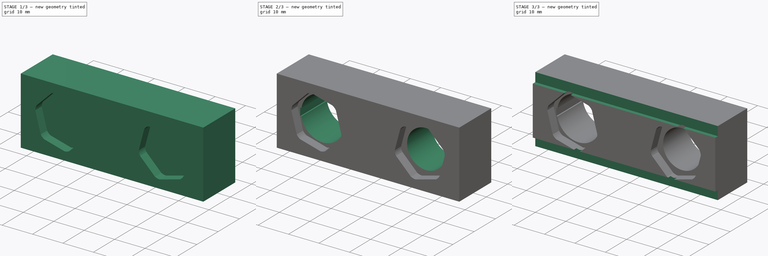
[diagram: build sequence overview — one tinted view per stage of 3, left to right]
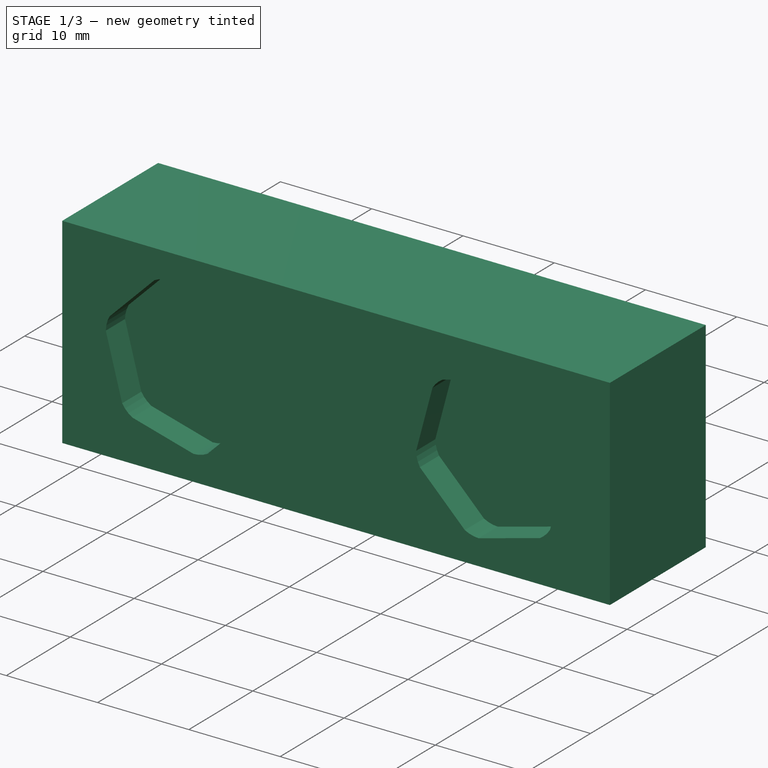
[diagram: stage 1 of 3 — iso view after this stage's code; geometry added in this stage tinted green]
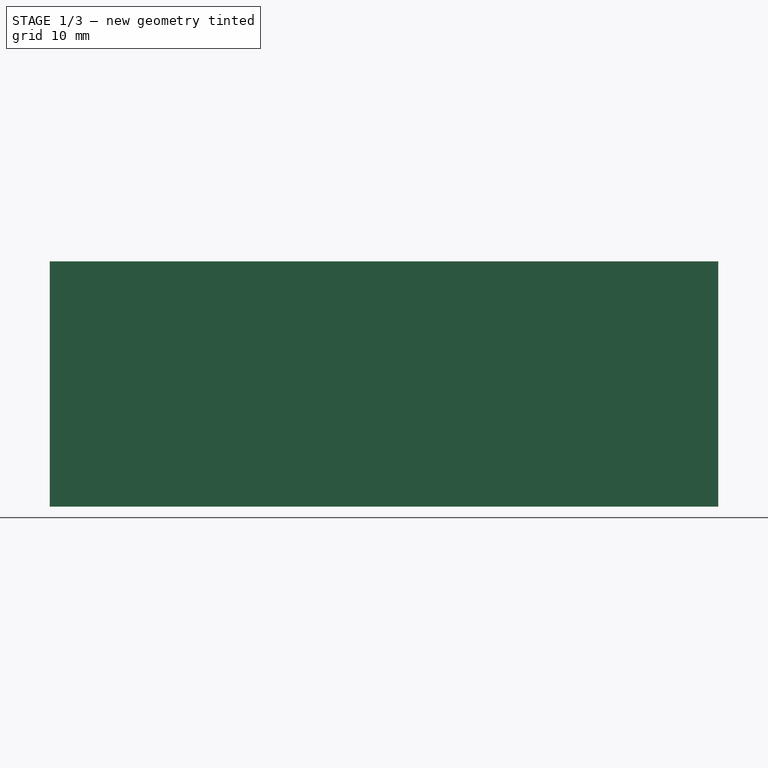
[diagram: stage 1 of 3 — front view after this stage's code; geometry added in this stage tinted green]
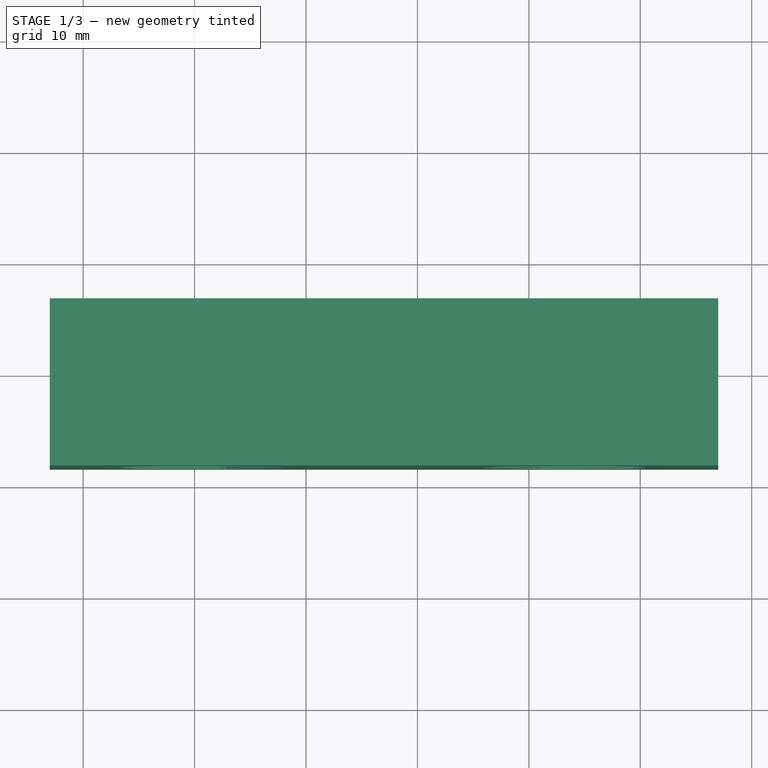
[diagram: stage 1 of 3 — top view after this stage's code; geometry added in this stage tinted green]
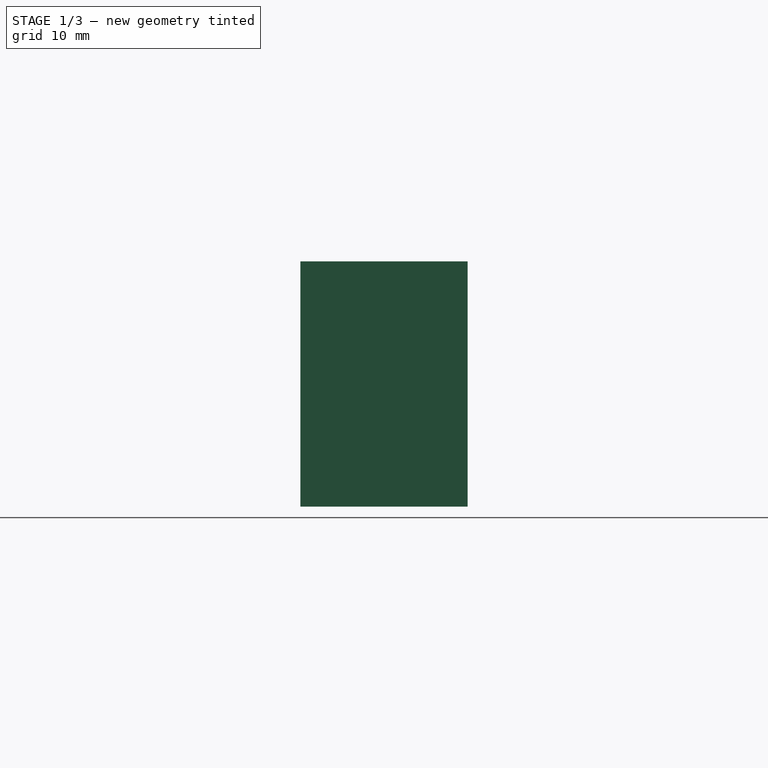
[diagram: stage 1 of 3 — right view after this stage's code; geometry added in this stage tinted green]
FCSTD DOCUMENT  (FreeCAD 0.18R4 (GitTag))
Label: HilfsmittelVerschraubung
License: All rights reserved
LicenseURL: http://en.wikipedia.org/wiki/All_rights_reserved
objects: Sketcher::SketchObject×5, Part::Feature×3, PartDesign::Pocket×3, PartDesign::Pad×2, App::Part×1, PartDesign::Body×1
note: 19 computed .brp shape members not serialized (recipe doc carries the construction recipe); baked Part::Feature solids carry a one-line shape summary decoded from their .brp

FEATURE [Sketcher::SketchObject] Sketch  label="SkizzeBasis"
  MapMode = 5
  Support = -> [XY_Plane]
  sketch-geometry (4):
    g0: LineSegment StartX=-13 StartY=16.6 StartZ=0 EndX=47 EndY=16.6 EndZ=0
    g1: LineSegment StartX=47 StartY=16.6 StartZ=0 EndX=47 EndY=1.6 EndZ=0
    g2: LineSegment StartX=47 StartY=1.6 StartZ=0 EndX=-13 EndY=1.6 EndZ=0
    g3: LineSegment StartX=-13 StartY=1.6 StartZ=0 EndX=-13 EndY=16.6 EndZ=0
  constraints (12):
    c: Coincident(g0,g1)
    c: Coincident(g1,g2)
    c: Coincident(g2,g3)
    c: Coincident(g3,g0)
    c: Horizontal(g0)
    c: Horizontal(g2)
    c: Vertical(g1)
    c: Vertical(g3)
    c: Distance(g3) = 15
    c: Distance(g2) = 60
    c: DistanceX(g2,g-1) = 13
    c: DistanceY(g-1,g2) = 1.6
FEATURE [PartDesign::Pad] Pad  label="Basis"
  Length = 11
  Length2 = 11
  Profile = -> Sketch
  Refine = true
  Type = 4
FEATURE [Part::Feature] Part__Feature001  label="SOLID"
  shape: bbox 16.5 x 19.3 x 15.08 mm, 298 faces (baked)
FEATURE [Part::Feature] Part__Feature002  label="SOLID001"
  shape: bbox 14.94 x 1 x 14.94 mm, 4 faces (baked)
FEATURE [App::Part] BS_0000000M300  label="BS-0000000M300"
  Group = -> [Part__Feature001,Part__Feature002]
  Origin = -> Origin001
  Placement = pos=(34,-5.5,0) rot=(0,1,0;0.785398rad)
FEATURE [Part::Feature] Part__Feature  label="1432460"
  Placement = pos=(0,-3,0) rot=(0,-1,0;0.785398rad)
  shape: bbox 17.11 x 15 x 17.11 mm, 236 faces (baked)
FEATURE [Sketcher::SketchObject] Sketch001  label="SkizzeSechskant"
  MapMode = 5
  Placement = pos=(0,1.6,0) rot=(1,0,0;1.5708rad)
  Support = -> [Pad]
  sketch-geometry (110):
    g0: LineSegment [constr] StartX=-2.89712 StartY=7.82773 StartZ=0 EndX=-2.41587 EndY=8.0451 EndZ=0
    g1: LineSegment StartX=-2.41587 StartY=8.0451 StartZ=0 EndX=-1.90561 EndY=8.18099 EndZ=0
    g2: LineSegment StartX=-1.90561 StartY=8.18099 StartZ=0 EndX=-1.38 EndY=8.23178 EndZ=0
    g3: LineSegment StartX=-1.38 StartY=8.23178 StartZ=0 EndX=5.33046 EndY=6.42284 EndZ=0
    g4: LineSegment StartX=5.33046 StartY=6.42284 StartZ=0 EndX=5.75932 EndY=6.11476 EndZ=0
    g5: LineSegment StartX=5.75932 StartY=6.11476 StartZ=0 EndX=6.13215 EndY=5.7408 EndZ=0
    g6: LineSegment StartX=6.13215 StartY=5.7408 StartZ=0 EndX=6.43893 EndY=5.31101 EndZ=0
    g7: LineSegment StartX=6.43893 StartY=5.31101 StartZ=0 EndX=8.22757 EndY=-1.40489 EndZ=0
    g8: LineSegment StartX=8.22757 StartY=-1.40489 StartZ=0 EndX=8.17519 EndY=-1.93034 EndZ=0
    g9: LineSegment StartX=8.17519 StartY=-1.93034 StartZ=0 EndX=8.03775 EndY=-2.44019 EndZ=0
    g10: LineSegment StartX=8.03775 StartY=-2.44019 StartZ=0 EndX=7.81893 EndY=-2.92078 EndZ=0
    g11: LineSegment StartX=7.81893 StartY=-2.92078 StartZ=0 EndX=2.89712 EndY=-7.82773 EndZ=0
    g12: LineSegment StartX=1.38 StartY=-8.23178 StartZ=0 EndX=-5.33046 EndY=-6.42284 EndZ=0
    g13: LineSegment StartX=-5.33046 StartY=-6.42284 StartZ=0 EndX=-5.75932 EndY=-6.11476 EndZ=0
    g14: LineSegment StartX=-5.75932 StartY=-6.11476 StartZ=0 EndX=-6.13215 EndY=-5.7408 EndZ=0
    g15: LineSegment StartX=-6.13215 StartY=-5.7408 StartZ=0 EndX=-6.43893 EndY=-5.31101 EndZ=0
    g16: LineSegment StartX=-6.43893 StartY=-5.31101 StartZ=0 EndX=-8.22757 EndY=1.40489 EndZ=0
    g17: LineSegment StartX=-8.22757 StartY=1.40489 StartZ=0 EndX=-8.17519 EndY=1.93034 EndZ=0
    g18: LineSegment StartX=-8.17519 StartY=1.93034 StartZ=0 EndX=-8.03775 EndY=2.44019 EndZ=0
    g19: LineSegment StartX=-8.03775 StartY=2.44019 StartZ=0 EndX=-7.81893 EndY=2.92078 EndZ=0
    g20: LineSegment StartX=-7.81893 StartY=2.92078 StartZ=0 EndX=-2.89712 EndY=7.82773 EndZ=0
    g21: LineSegment [constr] StartX=0 StartY=0 StartZ=0 EndX=-1.38 EndY=8.23178 EndZ=0
    g22: LineSegment [constr] StartX=-2.89712 StartY=7.82773 StartZ=0 EndX=0 EndY=0 EndZ=0
    g23: LineSegment [constr] StartX=0 StartY=0 StartZ=0 EndX=-7.81893 EndY=2.92078 EndZ=0
    g24: LineSegment [constr] StartX=0 StartY=0 StartZ=0 EndX=-8.22757 EndY=1.40489 EndZ=0
    g25: LineSegment [constr] StartX=0 StartY=0 StartZ=0 EndX=-6.43893 EndY=-5.31101 EndZ=0
    g26: LineSegment [constr] StartX=0 StartY=0 StartZ=0 EndX=-5.33046 EndY=-6.42284 EndZ=0
    g27: LineSegment [constr] StartX=0 StartY=0 StartZ=0 EndX=1.38 EndY=-8.23178 EndZ=0
    g28: LineSegment [constr] StartX=0 StartY=0 StartZ=0 EndX=2.89712 EndY=-7.82773 EndZ=0
    g29: LineSegment [constr] StartX=0 StartY=0 StartZ=0 EndX=7.81893 EndY=-2.92078 EndZ=0
    g30: LineSegment [constr] StartX=0 StartY=0 StartZ=0 EndX=8.22757 EndY=-1.40489 EndZ=0
    g31: LineSegment [constr] StartX=0 StartY=0 StartZ=0 EndX=6.43893 EndY=5.31101 EndZ=0
    g32: LineSegment [constr] StartX=0 StartY=0 StartZ=0 EndX=5.33046 EndY=6.42284 EndZ=0
    g33: LineSegment [constr] StartX=0 StartY=0 StartZ=0 EndX=-2.41587 EndY=8.0451 EndZ=0
    g34: LineSegment [constr] StartX=0 StartY=0 StartZ=0 EndX=-1.90561 EndY=8.18099 EndZ=0
    g35: LineSegment [constr] StartX=0 StartY=0 StartZ=0 EndX=-8.03775 EndY=2.44019 EndZ=0
    g36: LineSegment [constr] StartX=0 StartY=0 StartZ=0 EndX=-8.17519 EndY=1.93034 EndZ=0
    g37: LineSegment [constr] StartX=0 StartY=0 StartZ=0 EndX=-6.13215 EndY=-5.7408 EndZ=0
    g38: LineSegment [constr] StartX=0 StartY=0 StartZ=0 EndX=-5.75932 EndY=-6.11476 EndZ=0
    g39: LineSegment [constr] StartX=0 StartY=0 StartZ=0 EndX=8.03775 EndY=-2.44019 EndZ=0
    g40: LineSegment [constr] StartX=0 StartY=0 StartZ=0 EndX=8.17519 EndY=-1.93034 EndZ=0
    g41: LineSegment [constr] StartX=0 StartY=0 StartZ=0 EndX=6.13215 EndY=5.7408 EndZ=0
    g42: LineSegment [constr] StartX=0 StartY=0 StartZ=0 EndX=5.75932 EndY=6.11476 EndZ=0
    g43: LineSegment [constr] StartX=-2.89712 StartY=7.82773 StartZ=0 EndX=-1.38 EndY=8.23178 EndZ=0
    g44: LineSegment [constr] StartX=-7.81893 StartY=2.92078 StartZ=0 EndX=-8.22757 EndY=1.40489 EndZ=0
    g45: LineSegment [constr] StartX=-6.43893 StartY=-5.31101 StartZ=0 EndX=-5.33046 EndY=-6.42284 EndZ=0
    g46: LineSegment [constr] StartX=7.81893 StartY=-2.92078 StartZ=0 EndX=8.22757 EndY=-1.40489 EndZ=0
    g47: LineSegment [constr] StartX=6.43893 StartY=5.31101 StartZ=0 EndX=5.33046 EndY=6.42284 EndZ=0
    g48: LineSegment [constr] StartX=1.38 StartY=-8.23178 StartZ=0 EndX=2.89712 EndY=-7.82773 EndZ=0
    g49: LineSegment StartX=1.38 StartY=-8.23178 StartZ=0 EndX=1.90561 EndY=-8.18099 EndZ=0
    g50: LineSegment StartX=1.90561 StartY=-8.18099 StartZ=0 EndX=2.41587 EndY=-8.0451 EndZ=0
    g51: LineSegment StartX=2.41587 StartY=-8.0451 StartZ=0 EndX=2.89712 EndY=-7.82773 EndZ=0
    g52: LineSegment [constr] StartX=0 StartY=0 StartZ=0 EndX=1.90561 EndY=-8.18099 EndZ=0
    g53: LineSegment [constr] StartX=0 StartY=0 StartZ=0 EndX=2.41587 EndY=-8.0451 EndZ=0
    g54: LineSegment [constr] StartX=27.5611 StartY=5.31101 StartZ=0 EndX=28.6695 EndY=6.42284 EndZ=0
    g55: LineSegment StartX=28.6695 StartY=6.42284 StartZ=0 EndX=35.38 EndY=8.23178 EndZ=0
    g56: LineSegment [constr] StartX=35.38 StartY=8.23178 StartZ=0 EndX=36.8971 EndY=7.82773 EndZ=0
    g57: LineSegment StartX=36.8971 StartY=7.82773 StartZ=0 EndX=41.8189 EndY=2.92078 EndZ=0
    g58: LineSegment [constr] StartX=41.8189 StartY=2.92078 StartZ=0 EndX=42.2276 EndY=1.40489 EndZ=0
    g59: LineSegment StartX=42.2276 StartY=1.40489 StartZ=0 EndX=40.4389 EndY=-5.31101 EndZ=0
    g60: LineSegment [constr] StartX=40.4389 StartY=-5.31101 StartZ=0 EndX=39.3305 EndY=-6.42284 EndZ=0
    g61: LineSegment StartX=39.3305 StartY=-6.42284 StartZ=0 EndX=32.62 EndY=-8.23178 EndZ=0
    g62: LineSegment [constr] StartX=32.62 StartY=-8.23178 StartZ=0 EndX=31.1029 EndY=-7.82773 EndZ=0
    g63: LineSegment StartX=31.1029 StartY=-7.82773 StartZ=0 EndX=26.1811 EndY=-2.92078 EndZ=0
    g64: LineSegment [constr] StartX=26.1811 StartY=-2.92078 StartZ=0 EndX=25.7724 EndY=-1.40489 EndZ=0
    g65: LineSegment StartX=25.7724 StartY=-1.40489 StartZ=0 EndX=27.5611 EndY=5.31101 EndZ=0
    g66: LineSegment [constr] StartX=0 StartY=0 StartZ=0 EndX=34 EndY=0 EndZ=0
    g67: LineSegment [constr] StartX=34 StartY=0 StartZ=0 EndX=27.5611 EndY=5.31101 EndZ=0
    g68: LineSegment [constr] StartX=34 StartY=0 StartZ=0 EndX=28.6695 EndY=6.42284 EndZ=0
    g69: LineSegment [constr] StartX=34 StartY=0 StartZ=0 EndX=35.38 EndY=8.23178 EndZ=0
    g70: LineSegment [constr] StartX=34 StartY=0 StartZ=0 EndX=36.8971 EndY=7.82773 EndZ=0
    g71: LineSegment [constr] StartX=34 StartY=0 StartZ=0 EndX=41.8189 EndY=2.92078 EndZ=0
    g72: LineSegment [constr] StartX=34 StartY=0 StartZ=0 EndX=42.2276 EndY=1.40489 EndZ=0
    g73: LineSegment [constr] StartX=34 StartY=0 StartZ=0 EndX=40.4389 EndY=-5.31101 EndZ=0
    g74: LineSegment [constr] StartX=34 StartY=0 StartZ=0 EndX=39.3305 EndY=-6.42284 EndZ=0
    g75: LineSegment [constr] StartX=34 StartY=0 StartZ=0 EndX=32.62 EndY=-8.23178 EndZ=0
    g76: LineSegment [constr] StartX=34 StartY=0 StartZ=0 EndX=31.1029 EndY=-7.82773 EndZ=0
    g77: LineSegment [constr] StartX=34 StartY=0 StartZ=0 EndX=26.1811 EndY=-2.92078 EndZ=0
    g78: LineSegment [constr] StartX=34 StartY=0 StartZ=0 EndX=25.7724 EndY=-1.40489 EndZ=0
    g79: LineSegment StartX=35.38 StartY=8.23178 StartZ=0 EndX=35.9056 EndY=8.18099 EndZ=0
    g80: LineSegment StartX=36.4159 StartY=8.0451 StartZ=0 EndX=36.8971 EndY=7.82773 EndZ=0
    g81: LineSegment StartX=36.4159 StartY=8.0451 StartZ=0 EndX=35.9056 EndY=8.18099 EndZ=0
    g82: LineSegment StartX=41.8189 StartY=2.92078 StartZ=0 EndX=42.0378 EndY=2.44019 EndZ=0
    g83: LineSegment StartX=42.0378 StartY=2.44019 StartZ=0 EndX=42.1752 EndY=1.93034 EndZ=0
    g84: LineSegment StartX=42.1752 StartY=1.93034 StartZ=0 EndX=42.2276 EndY=1.40489 EndZ=0
    g85: LineSegment StartX=40.4389 StartY=-5.31101 StartZ=0 EndX=40.1321 EndY=-5.7408 EndZ=0
    g86: LineSegment StartX=40.1321 StartY=-5.7408 StartZ=0 EndX=39.7593 EndY=-6.11476 EndZ=0
    g87: LineSegment StartX=39.7593 StartY=-6.11476 StartZ=0 EndX=39.3305 EndY=-6.42284 EndZ=0
    g88: LineSegment StartX=32.62 StartY=-8.23178 StartZ=0 EndX=32.0944 EndY=-8.18099 EndZ=0
    g89: LineSegment StartX=32.0944 StartY=-8.18099 StartZ=0 EndX=31.5841 EndY=-8.0451 EndZ=0
    g90: LineSegment StartX=31.5841 StartY=-8.0451 StartZ=0 EndX=31.1029 EndY=-7.82773 EndZ=0
    g91: LineSegment StartX=26.1811 StartY=-2.92078 StartZ=0 EndX=25.9622 EndY=-2.44019 EndZ=0
    g92: LineSegment StartX=25.9622 StartY=-2.44019 StartZ=0 EndX=25.8248 EndY=-1.93034 EndZ=0
    g93: LineSegment StartX=25.8248 StartY=-1.93034 StartZ=0 EndX=25.7724 EndY=-1.40489 EndZ=0
    g94: LineSegment StartX=27.5611 StartY=5.31101 StartZ=0 EndX=27.8679 EndY=5.7408 EndZ=0
    g95: LineSegment StartX=27.8679 StartY=5.7408 StartZ=0 EndX=28.2407 EndY=6.11476 EndZ=0
    g96: LineSegment StartX=28.2407 StartY=6.11476 StartZ=0 EndX=28.6695 EndY=6.42284 EndZ=0
    g97: LineSegment [constr] StartX=34 StartY=0 StartZ=0 EndX=35.9056 EndY=8.18099 EndZ=0
    g98: LineSegment [constr] StartX=36.4159 StartY=8.0451 StartZ=0 EndX=34 EndY=0 EndZ=0
    g99: LineSegment [constr] StartX=42.0378 StartY=2.44019 StartZ=0 EndX=34 EndY=0 EndZ=0
    g100: LineSegment [constr] StartX=34 StartY=0 StartZ=0 EndX=42.1752 EndY=1.93034 EndZ=0
    g101: LineSegment [constr] StartX=40.1321 StartY=-5.7408 StartZ=0 EndX=34 EndY=0 EndZ=0
    g102: LineSegment [constr] StartX=34 StartY=0 StartZ=0 EndX=39.7593 EndY=-6.11476 EndZ=0
    g103: LineSegment [constr] StartX=32.0944 StartY=-8.18099 StartZ=0 EndX=34 EndY=0 EndZ=0
    g104: LineSegment [constr] StartX=34 StartY=0 StartZ=0 EndX=31.5841 EndY=-8.0451 EndZ=0
    g105: LineSegment [constr] StartX=25.8248 StartY=-1.93034 StartZ=0 EndX=34 EndY=0 EndZ=0
    g106: LineSegment [constr] StartX=34 StartY=0 StartZ=0 EndX=25.9622 EndY=-2.44019 EndZ=0
    g107: LineSegment [constr] StartX=27.8679 StartY=5.7408 StartZ=0 EndX=34 EndY=0 EndZ=0
    g108: LineSegment [constr] StartX=28.2407 StartY=6.11476 StartZ=0 EndX=34 EndY=0 EndZ=0
    g109: LineSegment StartX=-2.89712 StartY=7.82773 StartZ=0 EndX=-2.41587 EndY=8.0451 EndZ=0
  constraints (271):
    c: Coincident(g0,g1)
    c: Coincident(g1,g2)
    c: Coincident(g2,g3)
    c: Coincident(g3,g4)
    c: Coincident(g4,g5)
    c: Coincident(g5,g6)
    c: Coincident(g6,g7)
    c: Coincident(g7,g8)
    c: Coincident(g8,g9)
    c: Coincident(g9,g10)
    c: Coincident(g10,g11)
    c: Coincident(g12,g13)
    c: Coincident(g13,g14)
    c: Coincident(g14,g15)
    c: Coincident(g15,g16)
    c: Coincident(g16,g17)
    c: Coincident(g17,g18)
    c: Coincident(g18,g19)
    c: Coincident(g19,g20)
    c: Coincident(g20,g0)
    c: Coincident(g21,g-1)
    c: Coincident(g21,g2)
    c: Coincident(g22,g0)
    c: Coincident(g-1,g22)
    c: Coincident(g23,g-1)
    c: Coincident(g23,g19)
    c: Coincident(g24,g-1)
    c: Coincident(g24,g16)
    c: Coincident(g25,g-1)
    c: Coincident(g25,g15)
    c: Coincident(g26,g-1)
    c: Coincident(g26,g12)
    c: Coincident(g27,g-1)
    c: Coincident(g28,g-1)
    c: Coincident(g28,g11)
    c: Coincident(g29,g-1)
    c: Coincident(g29,g10)
    c: Coincident(g30,g-1)
    c: Coincident(g30,g7)
    c: Coincident(g31,g-1)
    c: Coincident(g31,g6)
    c: Coincident(g32,g-1)
    c: Coincident(g32,g3)
    c: Coincident(g33,g-1)
    c: Coincident(g33,g0)
    c: Coincident(g34,g-1)
    c: Coincident(g34,g1)
    c: Coincident(g35,g-1)
    c: Coincident(g35,g18)
    c: Coincident(g36,g-1)
    c: Coincident(g36,g17)
    c: Coincident(g37,g-1)
    c: Coincident(g37,g14)
    c: Coincident(g38,g-1)
    c: Coincident(g38,g13)
    c: Coincident(g39,g-1)
    c: Coincident(g39,g9)
    c: Coincident(g40,g-1)
    c: Coincident(g40,g8)
    c: Coincident(g41,g-1)
    c: Coincident(g41,g5)
    c: Coincident(g42,g-1)
    c: Coincident(g42,g4)
    c: Coincident(g43,g0)
    c: Coincident(g44,g19)
    c: Coincident(g44,g16)
    c: Coincident(g45,g15)
    c: Coincident(g45,g12)
    c: Coincident(g46,g10)
    c: Coincident(g46,g7)
    c: Coincident(g47,g6)
    c: Coincident(g47,g3)
    c: Coincident(g48,g11)
    c: Coincident(g43,g2)
    c: Equal(g21,g22)
    c: DistanceX(g2,g-1) = 1.38
    c: Distance(g43) = 1.57
    c: Equal(g23,g24)
    c: Equal(g22,g23)
    c: Equal(g43,g44)
    c: Distance(g20) = 6.95
    c: Equal(g25,g26)
    c: Equal(g20,g16)
    c: Equal(g44,g45)
    c: Coincident(g12,g27)
    c: Coincident(g12,g48)
    c: Equal(g27,g28)
    c: Equal(g27,g26)
    c: Equal(g48,g45)
    c: Equal(g16,g12)
    c: Equal(g29,g30)
    c: Equal(g29,g28)
    c: Equal(g46,g48)
    c: Equal(g12,g11)
    c: Equal(g31,g32)
    c: Equal(g31,g30)
    c: Equal(g46,g47)
    c: Equal(g7,g11)
    c: Equal(g7,g3)
    c: Coincident(g12,g49)
    c: Coincident(g49,g50)
    c: Coincident(g50,g51)
    c: Coincident(g51,g11)
    c: Equal(g49,g50)
    c: Equal(g51,g50)
    c: Equal(g15,g14)
    c: Equal(g13,g14)
    c: Equal(g17,g18)
    c: Equal(g18,g19)
    c: Equal(g0,g1)
    c: Equal(g1,g2)
    c: Equal(g4,g5)
    c: Equal(g5,g6)
    c: Equal(g8,g9)
    c: Equal(g9,g10)
    c: Equal(g39,g40)
    c: Equal(g42,g41)
    c: Equal(g33,g34)
    c: Equal(g36,g35)
    c: Equal(g37,g38)
    c: Coincident(g52,g-1)
    c: Coincident(g52,g49)
    c: Coincident(g53,g-1)
    c: Coincident(g53,g50)
    c: Equal(g52,g53)
    c: Equal(g53,g39)
    c: Equal(g52,g38)
    c: Equal(g42,g34)
    c: Equal(g35,g34)
    c: Equal(g36,g37)
    c: Distance(g41) = 8.4
    c: Coincident(g54,g55)
    c: Coincident(g55,g56)
    c: Coincident(g56,g57)
    c: Coincident(g57,g58)
    c: Coincident(g58,g59)
    c: Coincident(g59,g60)
    c: Coincident(g60,g61)
    c: Coincident(g61,g62)
    c: Coincident(g62,g63)
    c: Coincident(g63,g64)
    c: Coincident(g64,g65)
    c: Coincident(g65,g54)
    c: Coincident(g66,g-1)
    c: PointOnObject(g66,g-1)
    c: Distance(g66) = 34
    c: Coincident(g67,g66)
    c: Coincident(g67,g54)
    c: Coincident(g68,g66)
    c: Coincident(g68,g54)
    c: Coincident(g69,g66)
    c: Coincident(g69,g55)
    c: Coincident(g70,g66)
    c: Coincident(g70,g56)
    c: Coincident(g71,g66)
    c: Coincident(g71,g57)
    c: Coincident(g72,g66)
    c: Coincident(g72,g58)
    c: Coincident(g73,g66)
    c: Coincident(g73,g59)
    c: Coincident(g74,g66)
    c: Coincident(g74,g60)
    c: Coincident(g75,g66)
    c: Coincident(g75,g61)
    c: Coincident(g76,g66)
    c: Coincident(g76,g62)
    c: Coincident(g77,g66)
    c: Coincident(g77,g63)
    c: Coincident(g78,g66)
    c: Coincident(g78,g64)
    c: Equal(g78,g77)
    c: Equal(g76,g75)
    c: Equal(g74,g73)
    c: Equal(g72,g71)
    c: Equal(g70,g69)
    c: Equal(g68,g67)
    c: Equal(g67,g78)
    c: Equal(g77,g76)
    c: Equal(g75,g74)
    c: Equal(g73,g72)
    c: Equal(g71,g70)
    c: Equal(g69,g68)
    c: Equal(g54,g56)
    c: Equal(g56,g58)
    c: Equal(g58,g60)
    c: Equal(g60,g62)
    c: Equal(g62,g64)
    c: Equal(g55,g57)
    c: Equal(g57,g59)
    c: Equal(g59,g61)
    c: Equal(g61,g63)
    c: Equal(g63,g65)
    c: DistanceX(g66,g55) = 1.38
    c: Distance(g56) = 1.57
    c: Distance(g55) = 6.95
    c: Coincident(g79,g55)
    c: Coincident(g80,g57)
    c: Coincident(g81,g80)
    c: Coincident(g81,g79)
    c: Coincident(g57,g82)
    c: Coincident(g82,g83)
    c: Coincident(g83,g84)
    c: Coincident(g84,g59)
    c: Coincident(g59,g85)
    c: Coincident(g85,g86)
    c: Coincident(g86,g87)
    c: Coincident(g87,g61)
    c: Coincident(g61,g88)
    c: Coincident(g88,g89)
    c: Coincident(g89,g90)
    c: Coincident(g90,g63)
    c: Coincident(g63,g91)
    c: Coincident(g91,g92)
    c: Coincident(g92,g93)
    c: Coincident(g93,g65)
    c: Coincident(g65,g94)
    c: Coincident(g94,g95)
    c: Coincident(g95,g96)
    c: Coincident(g96,g55)
    c: Equal(g96,g95)
    c: Equal(g95,g94)
    c: Equal(g93,g92)
    c: Equal(g92,g91)
    c: Equal(g90,g89)
    c: Equal(g89,g88)
    c: Equal(g87,g86)
    c: Equal(g86,g85)
    c: Equal(g83,g84)
    c: Equal(g83,g82)
    c: Equal(g80,g81)
    c: Equal(g81,g79)
    c: Coincident(g97,g66)
    c: Coincident(g97,g79)
    c: Coincident(g98,g80)
    c: Coincident(g98,g66)
    c: Coincident(g99,g82)
    c: Coincident(g99,g66)
    c: Coincident(g100,g66)
    c: Coincident(g100,g83)
    c: Coincident(g101,g85)
    c: Coincident(g101,g66)
    c: Coincident(g102,g66)
    c: Coincident(g102,g86)
    c: Coincident(g103,g88)
    c: Coincident(g103,g66)
    c: Coincident(g104,g66)
    c: Coincident(g104,g89)
    c: Coincident(g105,g92)
    c: Coincident(g105,g66)
    c: Coincident(g106,g66)
    c: Coincident(g106,g91)
    c: Coincident(g107,g94)
    c: Coincident(g107,g66)
    c: Coincident(g108,g95)
    c: Coincident(g108,g66)
    c: Equal(g105,g106)
    c: Equal(g104,g103)
    c: Equal(g99,g100)
    c: Equal(g97,g98)
    c: Equal(g108,g107)
    c: Equal(g107,g105)
    c: Equal(g106,g104)
    c: Equal(g103,g102)
    c: Equal(g101,g100)
    c: Equal(g99,g98)
    c: Equal(g102,g101)
    c: Distance(g97) = 8.4
    c: Coincident(g109,g20)
    c: Coincident(g109,g1)
    c: Equal(g21,g22)
    c: Equal(g21,g32)
FEATURE [PartDesign::Pocket] Pocket  label="Sechskant"
  BaseFeature = -> Pad
  Length = 3
  Length2 = 100
  Profile = -> Sketch001
  Refine = true
  Type = 0
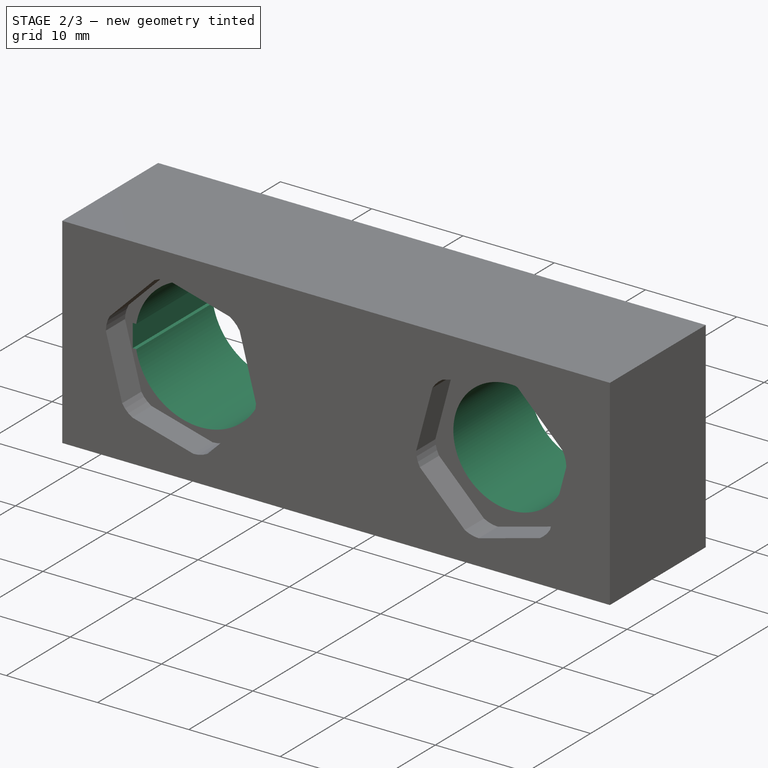
[diagram: stage 2 of 3 — iso view after this stage's code; geometry added in this stage tinted green]
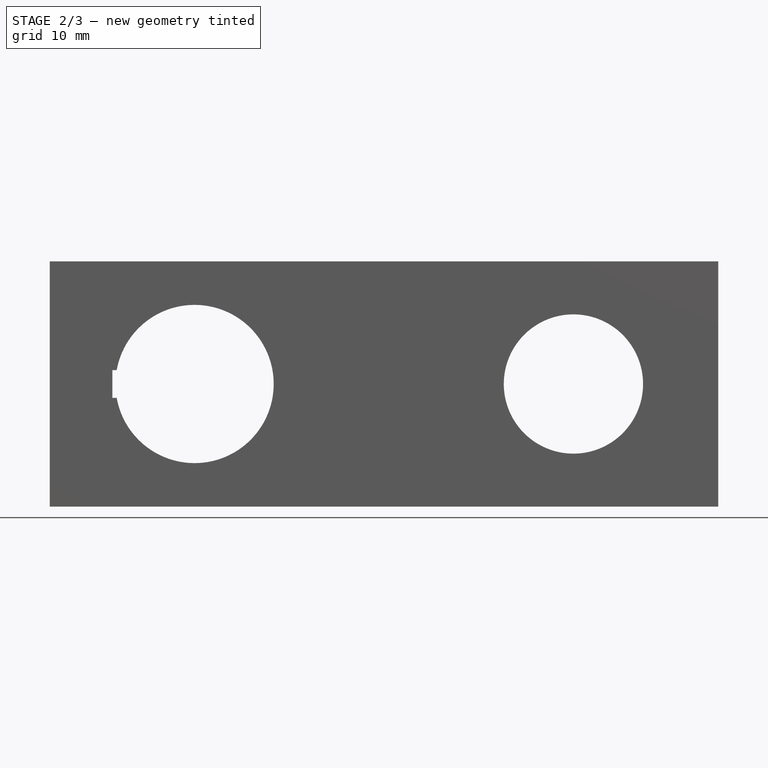
[diagram: stage 2 of 3 — front view after this stage's code; geometry added in this stage tinted green]
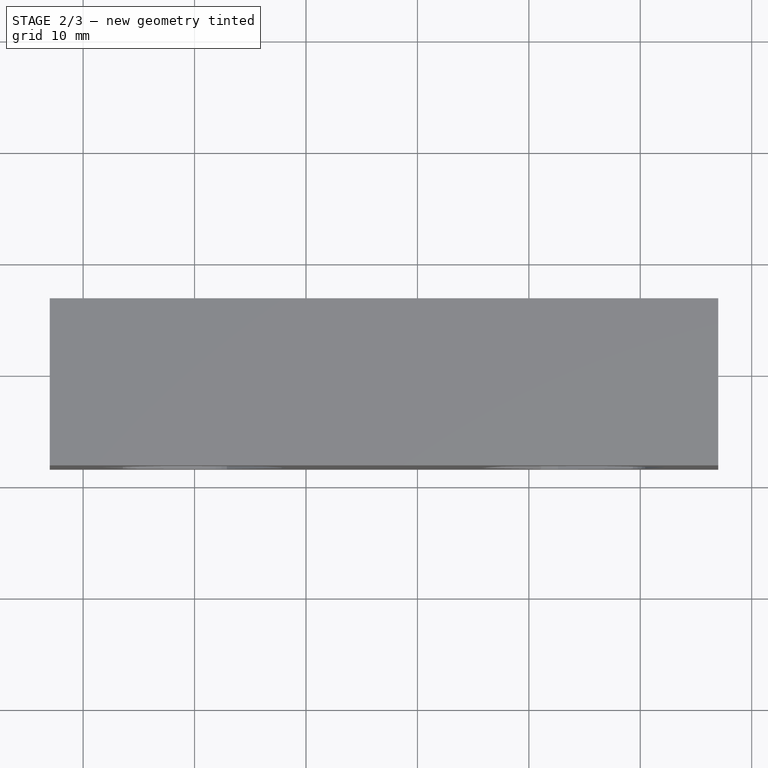
[diagram: stage 2 of 3 — top view after this stage's code; geometry added in this stage tinted green]
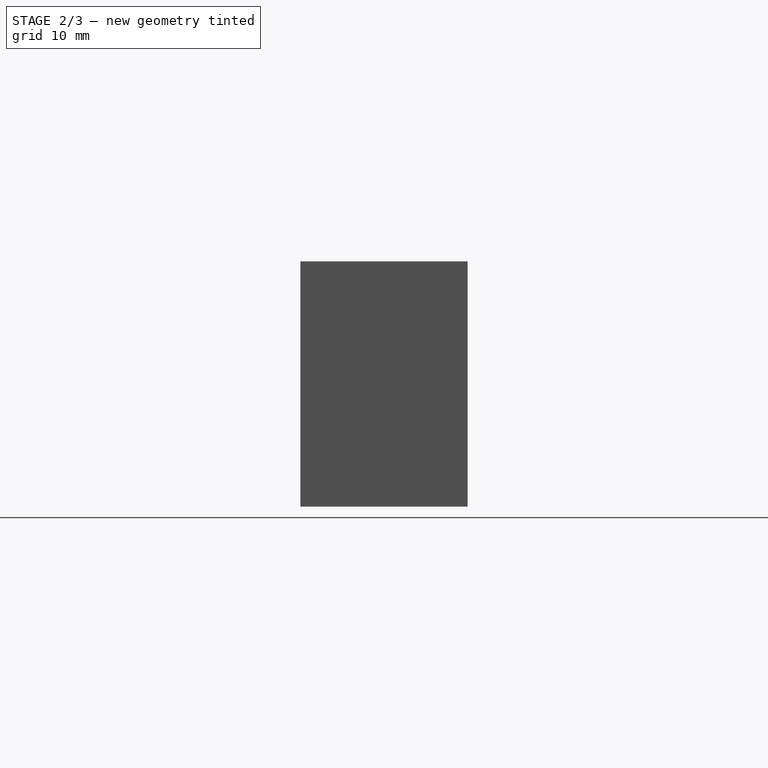
[diagram: stage 2 of 3 — right view after this stage's code; geometry added in this stage tinted green]
FEATURE [Sketcher::SketchObject] Sketch002  label="SkizzeBohrung"
  MapMode = 5
  Placement = pos=(0,1.6,0) rot=(1,0,0;1.5708rad)
  Support = -> [Pocket]
  sketch-geometry (8):
    g0: Circle CenterX=34 CenterY=0 CenterZ=0 NormalX=0 NormalY=0 NormalZ=1 AngleXU=0 Radius=6.25
    g1: LineSegment [constr] StartX=0 StartY=0 StartZ=0 EndX=34 EndY=0 EndZ=0
    g2: LineSegment StartX=-7.37861 StartY=1.25 StartZ=0 EndX=-6.9891 EndY=1.25 EndZ=0
    g3: LineSegment StartX=-6.9891 StartY=-1.25 StartZ=0 EndX=-7.37861 EndY=-1.25 EndZ=0
    g4: LineSegment StartX=-7.37861 StartY=-1.25 StartZ=0 EndX=-7.37861 EndY=1.25 EndZ=0
    g5: LineSegment [constr] StartX=0 StartY=0 StartZ=0 EndX=-7.37861 EndY=0 EndZ=0
    g6: ArcOfCircle CenterX=0 CenterY=0 CenterZ=0 NormalX=0 NormalY=0 NormalZ=1 AngleXU=0 Radius=7.1 StartAngle=3.31857 EndAngle=9.2478
    g7: LineSegment [constr] StartX=0 StartY=0 StartZ=0 EndX=-6.9891 EndY=-1.25 EndZ=0
  constraints (18):
    c: Horizontal(g1)
    c: Distance(g1) = 34
    c: Coincident(g1,g0)
    c: Diameter(g0) = 12.5
    c: Coincident(g3,g4)
    c: Coincident(g4,g2)
    c: Horizontal(g2)
    c: Horizontal(g3)
    c: Coincident(g5,g-1)
    c: Horizontal(g5)
    c: Symmetric(g4,g4,g5)
    c: Distance(g4) = 2.5
    c: Coincident(g6,g-1)
    c: Coincident(g6,g2)
    c: Coincident(g6,g3)
    c: Coincident(g7,g6)
    c: Coincident(g7,g3)
    c: Distance(g7) = 7.1
FEATURE [PartDesign::Pocket] Pocket001  label="Bohrung"
  BaseFeature = -> Pocket
  Length = 23
  Length2 = 100
  Profile = -> Sketch002
  Refine = true
  Type = 0
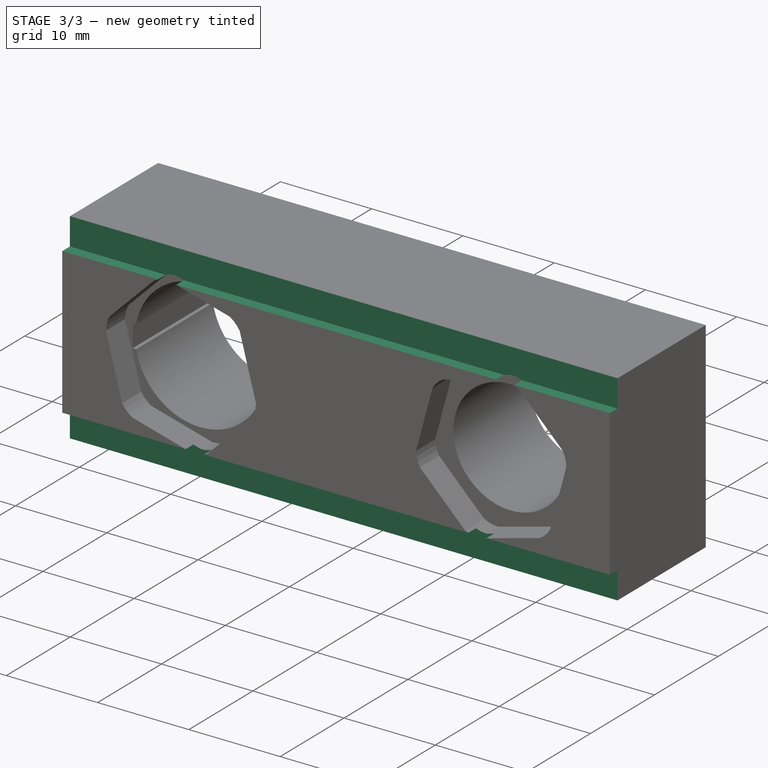
[diagram: stage 3 of 3 — iso view after this stage's code; geometry added in this stage tinted green]
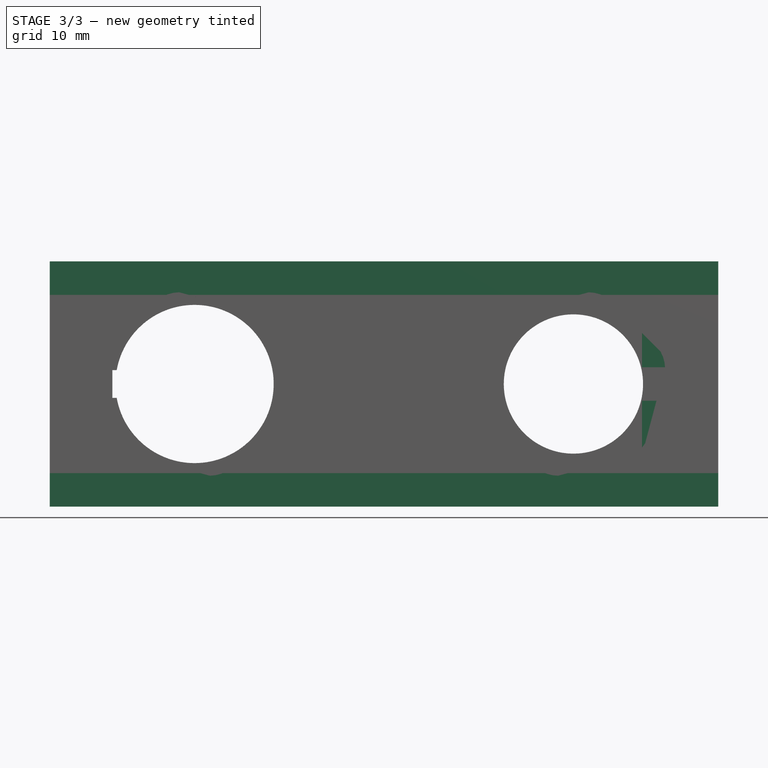
[diagram: stage 3 of 3 — front view after this stage's code; geometry added in this stage tinted green]
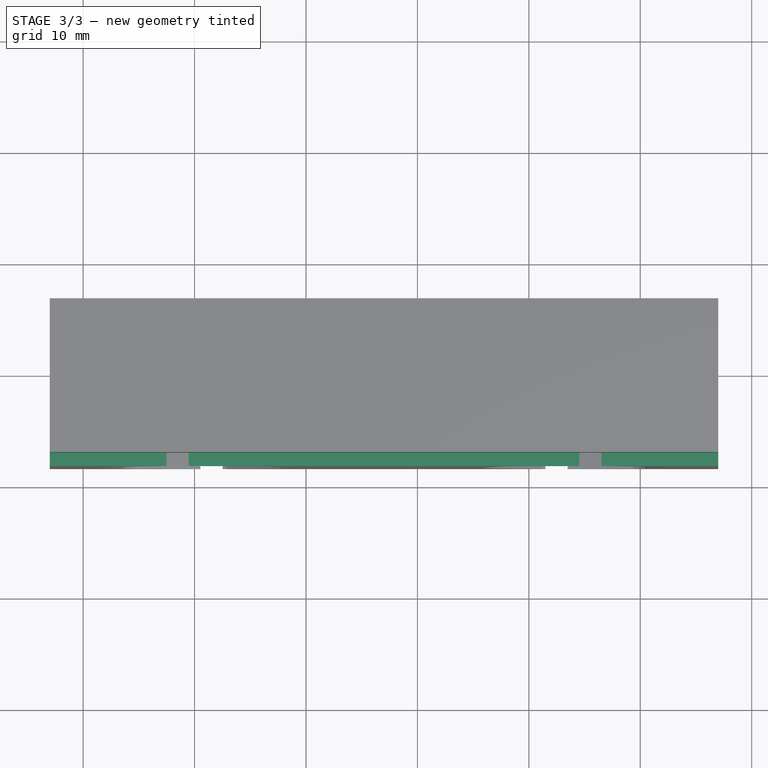
[diagram: stage 3 of 3 — top view after this stage's code; geometry added in this stage tinted green]
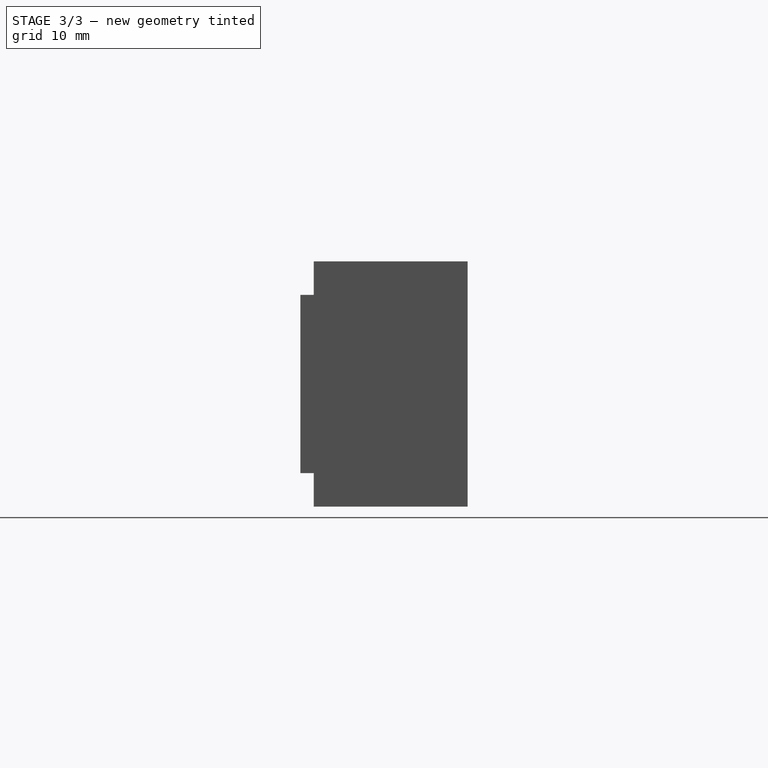
[diagram: stage 3 of 3 — right view after this stage's code; geometry added in this stage tinted green]
FEATURE [Sketcher::SketchObject] Sketch003  label="SkizzeVertiefung"
  MapMode = 5
  Placement = pos=(0,4.6,-1e-15) rot=(1,0,0;1.5708rad)
  Support = -> [Pocket001]
  sketch-geometry (10):
    g0: LineSegment [constr] StartX=0 StartY=0 StartZ=0 EndX=40.15 EndY=0 EndZ=0
    g1: LineSegment StartX=40.15 StartY=1.5 StartZ=0 EndX=42.4553 EndY=1.5 EndZ=0
    g2: LineSegment StartX=42.4553 StartY=1.5 StartZ=0 EndX=42.4553 EndY=5.4853 EndZ=0
    g3: LineSegment StartX=42.4553 StartY=5.4853 StartZ=0 EndX=40.15 EndY=5.4853 EndZ=0
    g4: LineSegment StartX=40.15 StartY=5.4853 StartZ=0 EndX=40.15 EndY=1.5 EndZ=0
    g5: LineSegment StartX=40.15 StartY=-1.5 StartZ=0 EndX=41.977 EndY=-1.5 EndZ=0
    g6: LineSegment StartX=41.977 StartY=-1.5 StartZ=0 EndX=41.977 EndY=-6.12248 EndZ=0
    g7: LineSegment StartX=41.977 StartY=-6.12248 StartZ=0 EndX=40.15 EndY=-6.12248 EndZ=0
    g8: LineSegment StartX=40.15 StartY=-6.12248 StartZ=0 EndX=40.15 EndY=-1.5 EndZ=0
    g9: LineSegment [constr] StartX=40.15 StartY=1.5 StartZ=0 EndX=40.15 EndY=-1.5 EndZ=0
  constraints (24):
    c: Coincident(g0,g-1)
    c: Horizontal(g0)
    c: Coincident(g1,g2)
    c: Coincident(g2,g3)
    c: Coincident(g3,g4)
    c: Coincident(g4,g1)
    c: Horizontal(g1)
    c: Horizontal(g3)
    c: Vertical(g2)
    c: Vertical(g4)
    c: Coincident(g5,g6)
    c: Coincident(g6,g7)
    c: Coincident(g7,g8)
    c: Coincident(g8,g5)
    c: Horizontal(g5)
    c: Horizontal(g7)
    c: Vertical(g6)
    c: Vertical(g8)
    c: Coincident(g9,g1)
    c: Coincident(g9,g5)
    c: Vertical(g9)
    c: Symmetric(g9,g9,g0)
    c: Distance(g9) = 3
    c: Distance(g0) = 40.15
FEATURE [PartDesign::Pad] Pad001  label="Vertiefung"
  BaseFeature = -> Pocket001
  Length = 0.4
  Length2 = 100
  Profile = -> Sketch003
  Refine = true
  Type = 0
FEATURE [Sketcher::SketchObject] Sketch004  label="SkizzeGehäusevertiefung"
  MapMode = 5
  Placement = pos=(0,1.6,0) rot=(1,0,0;1.5708rad)
  Support = -> [Pad001]
  sketch-geometry (9):
    g0: LineSegment StartX=-15 StartY=8 StartZ=0 EndX=53.8748 EndY=8 EndZ=0
    g1: LineSegment StartX=53.8748 StartY=8 StartZ=0 EndX=53.8748 EndY=-8 EndZ=0
    g2: LineSegment StartX=-16.0145 StartY=13.5432 StartZ=0 EndX=-16.0145 EndY=-14.1101 EndZ=0
    g3: LineSegment StartX=-16.0145 StartY=-14.1101 StartZ=0 EndX=49.9492 EndY=-14.1101 EndZ=0
    g4: LineSegment StartX=49.9492 StartY=-14.1101 StartZ=0 EndX=49.9492 EndY=13.5432 EndZ=0
    g5: LineSegment StartX=49.9492 StartY=13.5432 StartZ=0 EndX=-16.0145 EndY=13.5432 EndZ=0
    g6: LineSegment StartX=53.8748 StartY=-8 StartZ=0 EndX=-15 EndY=-8 EndZ=0
    g7: LineSegment StartX=-15 StartY=-8 StartZ=0 EndX=-15 EndY=8 EndZ=0
    g8: LineSegment [constr] StartX=0 StartY=0 StartZ=0 EndX=-15 EndY=0 EndZ=0
  constraints (21):
    c: Horizontal(g0)
    c: Coincident(g0,g1)
    c: Vertical(g1)
    c: Vertical(g2)
    c: Coincident(g2,g3)
    c: Horizontal(g3)
    c: Coincident(g3,g4)
    c: Vertical(g4)
    c: Coincident(g4,g5)
    c: Horizontal(g5)
    c: Coincident(g1,g6)
    c: Horizontal(g6)
    c: Coincident(g6,g7)
    c: Coincident(g7,g0)
    c: Vertical(g7)
    c: Coincident(g2,g5)
    c: Coincident(g8,g-1)
    c: Horizontal(g8)
    c: Symmetric(g7,g7,g8)
    c: Distance(g7) = 16
    c: DistanceX(g0,g-1) = 15
FEATURE [PartDesign::Pocket] Pocket002  label="Gehäusevertiefung"
  BaseFeature = -> Pad001
  Length = 1.2
  Length2 = 100
  Profile = -> Sketch004
  Refine = true
  Type = 0
FEATURE [PartDesign::Body] Body  label="Grundblock"
  Group = -> [Sketch,Pad,Sketch001,Pocket,Sketch002,Pocket001,Sketch003,Pad001,Sketch004,Pocket002]
  Origin = -> Origin
  Tip = -> Pocket002
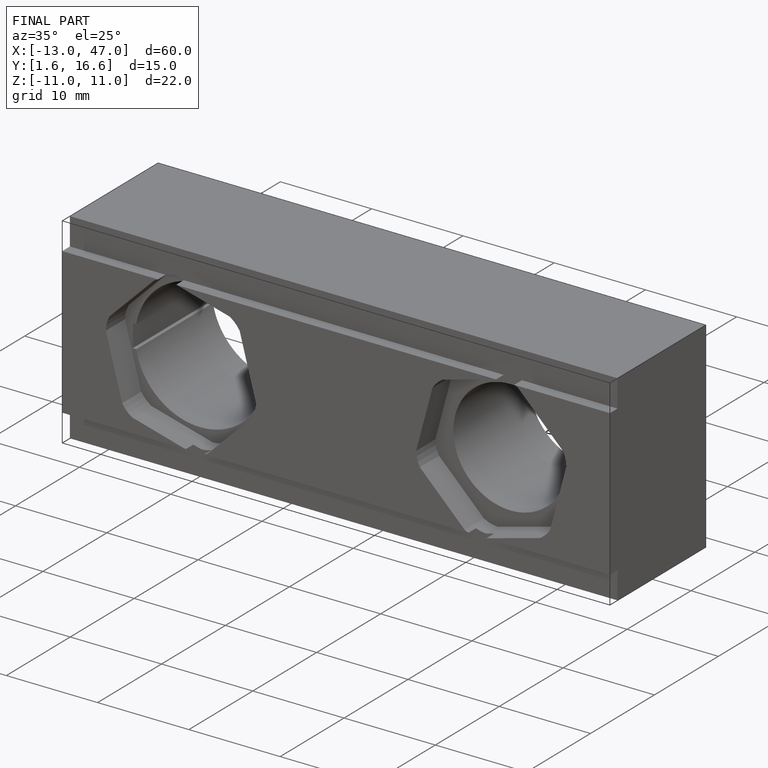
[diagram: finished part — iso view with bounding-box wireframe]
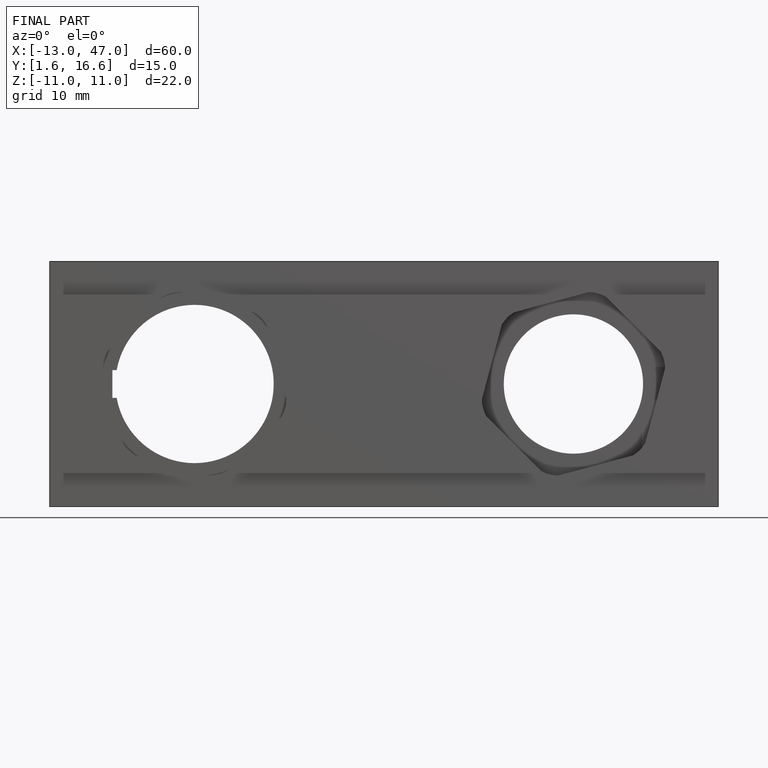
[diagram: finished part — front view with bounding-box wireframe]
